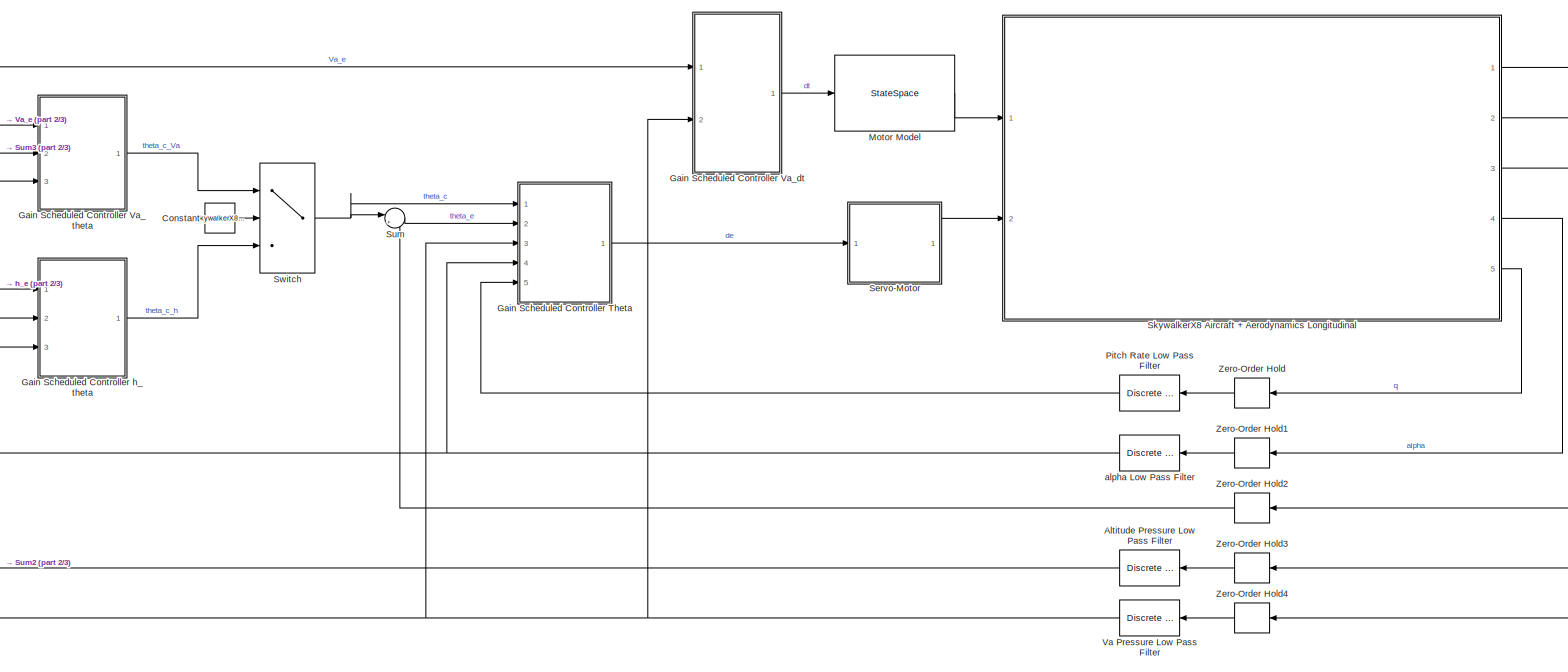
[diagram: root canvas - part 1/3, most of the canvas]
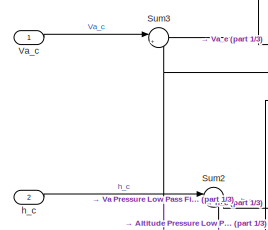
[diagram: root canvas - part 2/3, top left region]
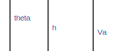
[diagram: root canvas - part 3/3, middle right region]
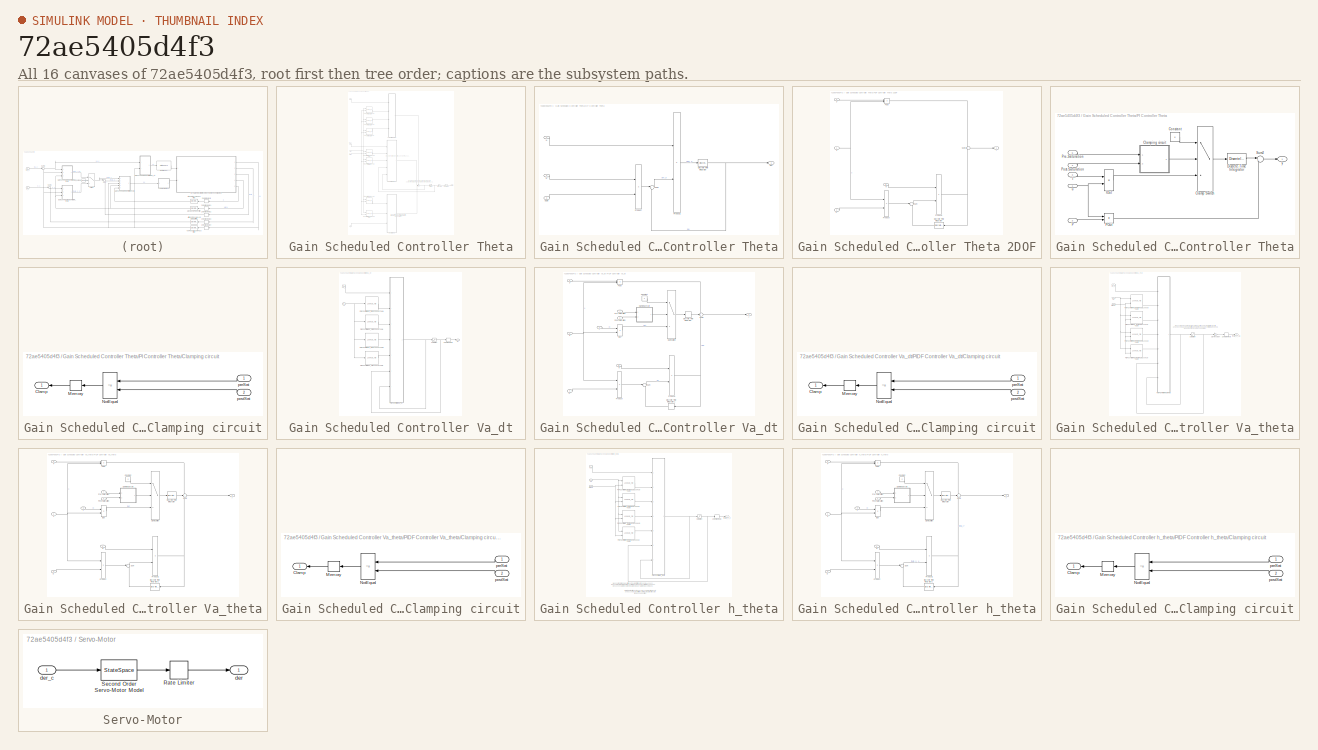
[diagram: thumbnail index - all 16 canvases of the model, root first then tree order]
MODEL slx_72ae5405d4f3
KIND model
CONFIG AbsTol = auto
CONFIG EnableMultiTasking = off
CONFIG FixedStep = 0.001
CONFIG MaxStep = auto
CONFIG MinStep = auto
CONFIG RelTol = 1e-3
CONFIG SampleTimeConstraint = Unconstrained
CONFIG Solver = FixedStepAuto
CONFIG SolverName = FixedStepAuto
CONFIG StartTime = 0.0
CONFIG StopTime = inf
BLOCK [Reference] Altitude Pressure Low Pass Filter  REF=simulink_extras/Additional
Discrete/Discrete
Transfer Fcn
(with initial outputs)
  Ports = [1, 1]
  SourceBlock = simulink_extras/Additional\nDiscrete/Discrete\nTransfer Fcn\n(with initial outputs)
  SourceProductBaseCode = SL
  SourceProductName = Simulink
  SourceType = Discrete Transfer Function with Initial Outputs
BLOCK [Constant] Constant
  Value = SkywalkerX8.Control.Longitudinal.AlgebraicDesign.ReducedOrderModel.Controller.ThetaCSelector
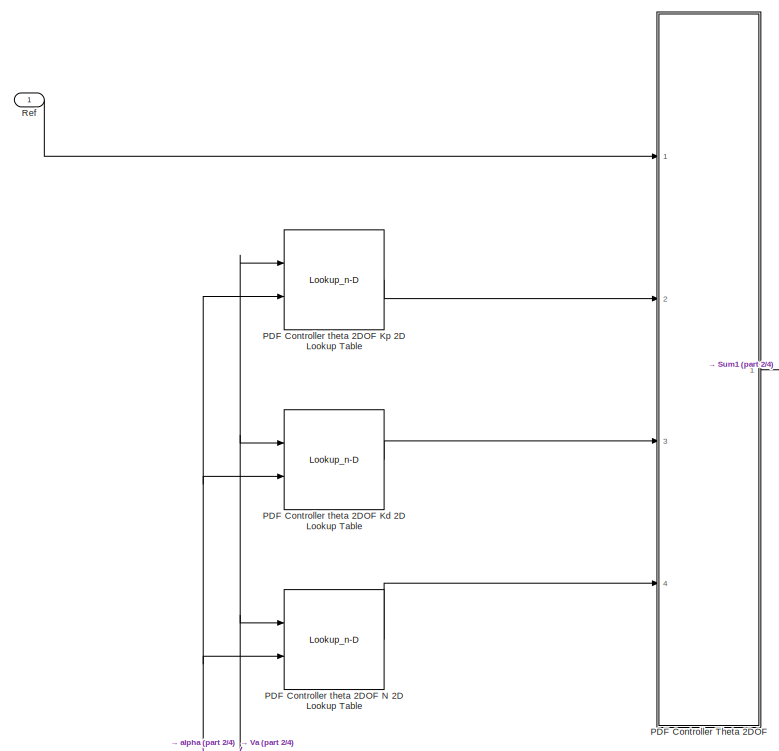
[diagram: Gain Scheduled Controller Theta - part 1/4, top left region]
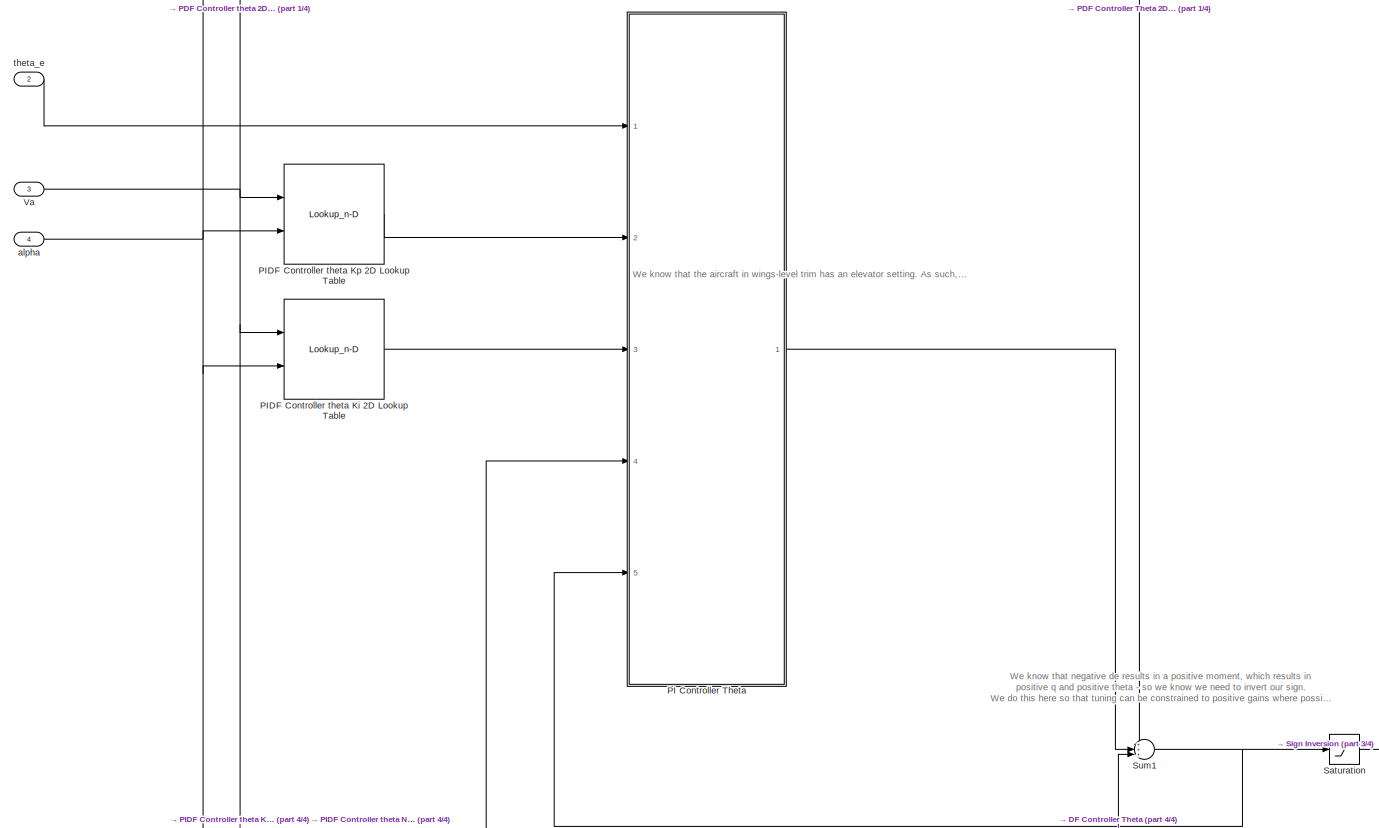
[diagram: Gain Scheduled Controller Theta - part 2/4, full width, middle band]
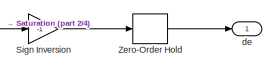
[diagram: Gain Scheduled Controller Theta - part 3/4, middle right region]
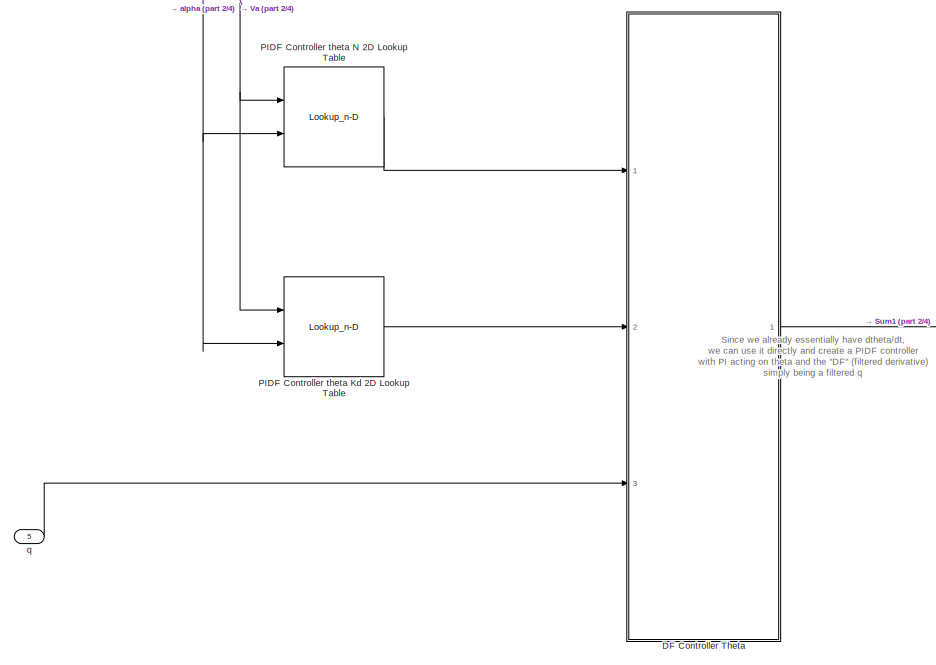
[diagram: Gain Scheduled Controller Theta - part 4/4, bottom left region]
BLOCK [SubSystem] Gain Scheduled Controller Theta
  Ports = [5, 1]
  RequestExecContextInheritance = off
BLOCK [SubSystem] Gain Scheduled Controller Theta/DF Controller Theta
  Ports = [3, 1]
  RequestExecContextInheritance = off
BLOCK [Inport] Gain Scheduled Controller Theta/DF Controller Theta/D
  IconDisplay = Port number
  Port = 2
BLOCK [DiscreteIntegrator] Gain Scheduled Controller Theta/DF Controller Theta/Discrete-Time Integrator
  ICPrevOutput = DiscIntNeverNeededParam
  ICPrevScaledInput = DiscIntNeverNeededParam
  InitialConditionSetting = Auto
  IntegratorMethod = Integration: Trapezoidal
  Ports = [1, 1]
  SampleTime = SkywalkerX8.Control.Longitudinal.thetaController.Digital.SampleTime
BLOCK [Inport] Gain Scheduled Controller Theta/DF Controller Theta/N
  IconDisplay = Port number
BLOCK [Product] Gain Scheduled Controller Theta/DF Controller Theta/Product
  InputSameDT = off
  OutDataTypeStr = Inherit: Inherit via internal rule
  Ports = [2, 1]
  RndMeth = Floor
  SaturateOnIntegerOverflow = off
BLOCK [Product] Gain Scheduled Controller Theta/DF Controller Theta/Product1
  InputSameDT = off
  OutDataTypeStr = Inherit: Inherit via internal rule
  Ports = [2, 1]
  RndMeth = Floor
  SaturateOnIntegerOverflow = off
BLOCK [Sum] Gain Scheduled Controller Theta/DF Controller Theta/Sum
  IconShape = round
  InputSameDT = off
  Inputs = |+-
  OutDataTypeStr = Inherit: Inherit via internal rule
  Ports = [2, 1]
  SaturateOnIntegerOverflow = off
BLOCK [Outport] Gain Scheduled Controller Theta/DF Controller Theta/de*
  IconDisplay = Port number
BLOCK [Inport] Gain Scheduled Controller Theta/DF Controller Theta/du//dt
  IconDisplay = Port number
  Port = 3
BLOCK [SubSystem] Gain Scheduled Controller Theta/PDF Controller Theta 2DOF
  Ports = [4, 1]
  RequestExecContextInheritance = off
BLOCK [Inport] Gain Scheduled Controller Theta/PDF Controller Theta 2DOF/D
  IconDisplay = Port number
  Port = 3
BLOCK [DiscreteIntegrator] Gain Scheduled Controller Theta/PDF Controller Theta 2DOF/Discrete-Time Integrator
  ICPrevOutput = DiscIntNeverNeededParam
  ICPrevScaledInput = DiscIntNeverNeededParam
  InitialConditionSetting = Auto
  Ports = [1, 1]
  SampleTime = SkywalkerX8.Control.Longitudinal.thetaController.Digital.SampleTime
BLOCK [Inport] Gain Scheduled Controller Theta/PDF Controller Theta 2DOF/N
  IconDisplay = Port number
  Port = 4
BLOCK [Inport] Gain Scheduled Controller Theta/PDF Controller Theta 2DOF/P
  IconDisplay = Port number
  Port = 2
BLOCK [Product] Gain Scheduled Controller Theta/PDF Controller Theta 2DOF/POut
  InputSameDT = off
  OutDataTypeStr = Inherit: Inherit via internal rule
  Ports = [2, 1]
  RndMeth = Floor
  SaturateOnIntegerOverflow = off
BLOCK [Product] Gain Scheduled Controller Theta/PDF Controller Theta 2DOF/Product
  InputSameDT = off
  OutDataTypeStr = Inherit: Inherit via internal rule
  Ports = [2, 1]
  RndMeth = Floor
  SaturateOnIntegerOverflow = off
BLOCK [Product] Gain Scheduled Controller Theta/PDF Controller Theta 2DOF/Product1
  InputSameDT = off
  OutDataTypeStr = Inherit: Inherit via internal rule
  Ports = [2, 1]
  RndMeth = Floor
  SaturateOnIntegerOverflow = off
BLOCK [Sum] Gain Scheduled Controller Theta/PDF Controller Theta 2DOF/Sum
  IconShape = round
  InputSameDT = off
  Inputs = |+-
  OutDataTypeStr = Inherit: Inherit via internal rule
  Ports = [2, 1]
  SaturateOnIntegerOverflow = off
BLOCK [Sum] Gain Scheduled Controller Theta/PDF Controller Theta 2DOF/Sum2
  IconShape = round
  InputSameDT = off
  OutDataTypeStr = Inherit: Inherit via internal rule
  Ports = [2, 1]
  SaturateOnIntegerOverflow = off
BLOCK [Inport] Gain Scheduled Controller Theta/PDF Controller Theta 2DOF/u
  IconDisplay = Port number
BLOCK [Outport] Gain Scheduled Controller Theta/PDF Controller Theta 2DOF/y
  IconDisplay = Port number
  InitialOutput = 0
BLOCK [Lookup_n-D] Gain Scheduled Controller Theta/PDF Controller theta 2DOF Kd 2D Lookup Table
  BreakpointsForDimension1 = SkywalkerX8.Control.Longitudinal.SchedulingVariables.VaArray
  BreakpointsForDimension2 = SkywalkerX8.Control.Longitudinal.SchedulingVariables.alphaArray
  InternalRulePriority = Speed
  Ports = [2, 1]
  RndMeth = Simplest
  Table = SkywalkerX8.Control.Longitudinal.thetaController.Digital.KdTheta2DOF
BLOCK [Lookup_n-D] Gain Scheduled Controller Theta/PDF Controller theta 2DOF Kp 2D Lookup Table
  BreakpointsForDimension1 = SkywalkerX8.Control.Longitudinal.SchedulingVariables.VaArray
  BreakpointsForDimension2 = SkywalkerX8.Control.Longitudinal.SchedulingVariables.alphaArray
  InternalRulePriority = Speed
  Ports = [2, 1]
  RndMeth = Simplest
  Table = SkywalkerX8.Control.Longitudinal.thetaController.Digital.KpTheta2DOF
BLOCK [Lookup_n-D] Gain Scheduled Controller Theta/PDF Controller theta 2DOF N 2D Lookup Table
  BreakpointsForDimension1 = SkywalkerX8.Control.Longitudinal.SchedulingVariables.VaArray
  BreakpointsForDimension2 = SkywalkerX8.Control.Longitudinal.SchedulingVariables.alphaArray
  InternalRulePriority = Speed
  Ports = [2, 1]
  RndMeth = Simplest
  Table = SkywalkerX8.Control.Longitudinal.thetaController.Digital.NTheta2DOF
BLOCK [SubSystem] Gain Scheduled Controller Theta/PI Controller Theta
  Ports = [5, 1]
  RequestExecContextInheritance = off
BLOCK [Switch] Gain Scheduled Controller Theta/PI Controller Theta/Clamp Switch
  Criteria = u2 ~= 0
  InputSameDT = off
  SaturateOnIntegerOverflow = off
BLOCK [SubSystem] Gain Scheduled Controller Theta/PI Controller Theta/Clamping circuit
  Ports = [2, 1]
  RequestExecContextInheritance = off
BLOCK [Outport] Gain Scheduled Controller Theta/PI Controller Theta/Clamping circuit/Clamp
  DisableCoverage = on
  IconDisplay = Port number
BLOCK [Memory] Gain Scheduled Controller Theta/PI Controller Theta/Clamping circuit/Memory
  DisableCoverage = on
BLOCK [RelationalOperator] Gain Scheduled Controller Theta/PI Controller Theta/Clamping circuit/NotEqual
  DisableCoverage = on
  Operator = ~=
  Ports = [2, 1]
BLOCK [Inport] Gain Scheduled Controller Theta/PI Controller Theta/Clamping circuit/postSat
  DisableCoverage = on
  IconDisplay = Port number
  Port = 2
BLOCK [Inport] Gain Scheduled Controller Theta/PI Controller Theta/Clamping circuit/preSat
  DisableCoverage = on
  IconDisplay = Port number
BLOCK [Constant] Gain Scheduled Controller Theta/PI Controller Theta/Constant
  Value = 0
BLOCK [DiscreteIntegrator] Gain Scheduled Controller Theta/PI Controller Theta/Discrete-Time Integrator
  ICPrevOutput = DiscIntNeverNeededParam
  ICPrevScaledInput = DiscIntNeverNeededParam
  InitialCondition = SkywalkerX8.InitialConditions.ThetaController.Integrator
  InitialConditionSetting = Auto
  IntegratorMethod = Integration: Trapezoidal
  Ports = [1, 1]
  SampleTime = SkywalkerX8.Control.Longitudinal.thetaController.Digital.SampleTime
BLOCK [Inport] Gain Scheduled Controller Theta/PI Controller Theta/I
  IconDisplay = Port number
  Port = 3
BLOCK [Product] Gain Scheduled Controller Theta/PI Controller Theta/IOut
  DisableCoverage = on
  InputSameDT = off
  OutDataTypeStr = Inherit: Inherit via internal rule
  Ports = [2, 1]
  RndMeth = Floor
  SaturateOnIntegerOverflow = off
BLOCK [Inport] Gain Scheduled Controller Theta/PI Controller Theta/P
  IconDisplay = Port number
  Port = 2
BLOCK [Product] Gain Scheduled Controller Theta/PI Controller Theta/POut
  InputSameDT = off
  OutDataTypeStr = Inherit: Inherit via internal rule
  Ports = [2, 1]
  RndMeth = Floor
  SaturateOnIntegerOverflow = off
BLOCK [Inport] Gain Scheduled Controller Theta/PI Controller Theta/Post-Saturation
  IconDisplay = Port number
  Port = 4
BLOCK [Inport] Gain Scheduled Controller Theta/PI Controller Theta/Pre-Saturation
  IconDisplay = Port number
  Port = 5
BLOCK [Sum] Gain Scheduled Controller Theta/PI Controller Theta/Sum2
  IconShape = round
  InputSameDT = off
  Inputs = |++
  OutDataTypeStr = Inherit: Inherit via internal rule
  Ports = [2, 1]
  SaturateOnIntegerOverflow = off
BLOCK [Inport] Gain Scheduled Controller Theta/PI Controller Theta/u
  IconDisplay = Port number
BLOCK [Outport] Gain Scheduled Controller Theta/PI Controller Theta/y
  IconDisplay = Port number
  InitialOutput = 0
BLOCK [Lookup_n-D] Gain Scheduled Controller Theta/PIDF Controller theta Kd 2D Lookup Table
  BreakpointsForDimension1 = SkywalkerX8.Control.Longitudinal.SchedulingVariables.VaArray
  BreakpointsForDimension2 = SkywalkerX8.Control.Longitudinal.SchedulingVariables.alphaArray
  InternalRulePriority = Speed
  Ports = [2, 1]
  RndMeth = Simplest
  Table = SkywalkerX8.Control.Longitudinal.thetaController.Digital.KdTheta
BLOCK [Lookup_n-D] Gain Scheduled Controller Theta/PIDF Controller theta Ki 2D Lookup Table
  BreakpointsForDimension1 = SkywalkerX8.Control.Longitudinal.SchedulingVariables.VaArray
  BreakpointsForDimension2 = SkywalkerX8.Control.Longitudinal.SchedulingVariables.alphaArray
  InternalRulePriority = Speed
  Ports = [2, 1]
  RndMeth = Simplest
  Table = SkywalkerX8.Control.Longitudinal.thetaController.Digital.KiTheta
BLOCK [Lookup_n-D] Gain Scheduled Controller Theta/PIDF Controller theta Kp 2D Lookup Table
  BreakpointsForDimension1 = SkywalkerX8.Control.Longitudinal.SchedulingVariables.VaArray
  BreakpointsForDimension2 = SkywalkerX8.Control.Longitudinal.SchedulingVariables.alphaArray
  InternalRulePriority = Speed
  Ports = [2, 1]
  RndMeth = Simplest
  Table = SkywalkerX8.Control.Longitudinal.thetaController.Digital.KpTheta
BLOCK [Lookup_n-D] Gain Scheduled Controller Theta/PIDF Controller theta N 2D Lookup Table
  BreakpointsForDimension1 = SkywalkerX8.Control.Longitudinal.SchedulingVariables.VaArray
  BreakpointsForDimension2 = SkywalkerX8.Control.Longitudinal.SchedulingVariables.alphaArray
  InternalRulePriority = Speed
  Ports = [2, 1]
  RndMeth = Simplest
  Table = SkywalkerX8.Control.Longitudinal.thetaController.Digital.NTheta
BLOCK [Inport] Gain Scheduled Controller Theta/Ref
  IconDisplay = Port number
BLOCK [Saturate] Gain Scheduled Controller Theta/Saturation
  InputPortMap = u0
  LowerLimit = SkywalkerX8.Control.Longitudinal.thetaController.Digital.lowerSaturationNegativeDe
  Ports = [1, 1]
  UpperLimit = SkywalkerX8.Control.Longitudinal.thetaController.Digital.upperSaturationNegativeDe
BLOCK [Gain] Gain Scheduled Controller Theta/Sign Inversion
  Gain = -1
  OutDataTypeStr = Inherit: Inherit via internal rule
  ParamDataTypeStr = Inherit: Inherit via internal rule
  SaturateOnIntegerOverflow = off
BLOCK [Sum] Gain Scheduled Controller Theta/Sum1
  IconShape = round
  InputSameDT = off
  Inputs = +++|
  OutDataTypeStr = Inherit: Inherit via internal rule
  Ports = [3, 1]
  SaturateOnIntegerOverflow = off
BLOCK [Inport] Gain Scheduled Controller Theta/Va
  IconDisplay = Port number
  Port = 3
BLOCK [ZeroOrderHold] Gain Scheduled Controller Theta/Zero-Order Hold
  SampleTime = SkywalkerX8.Control.Longitudinal.thetaController.Digital.SampleTime
BLOCK [Inport] Gain Scheduled Controller Theta/alpha
  IconDisplay = Port number
  Port = 4
BLOCK [Outport] Gain Scheduled Controller Theta/de
  IconDisplay = Port number
BLOCK [Inport] Gain Scheduled Controller Theta/q
  IconDisplay = Port number
  Port = 5
BLOCK [Inport] Gain Scheduled Controller Theta/theta_e
  IconDisplay = Port number
  Port = 2
BLOCK [SubSystem] Gain Scheduled Controller Va_dt
  Ports = [2, 1]
  RequestExecContextInheritance = off
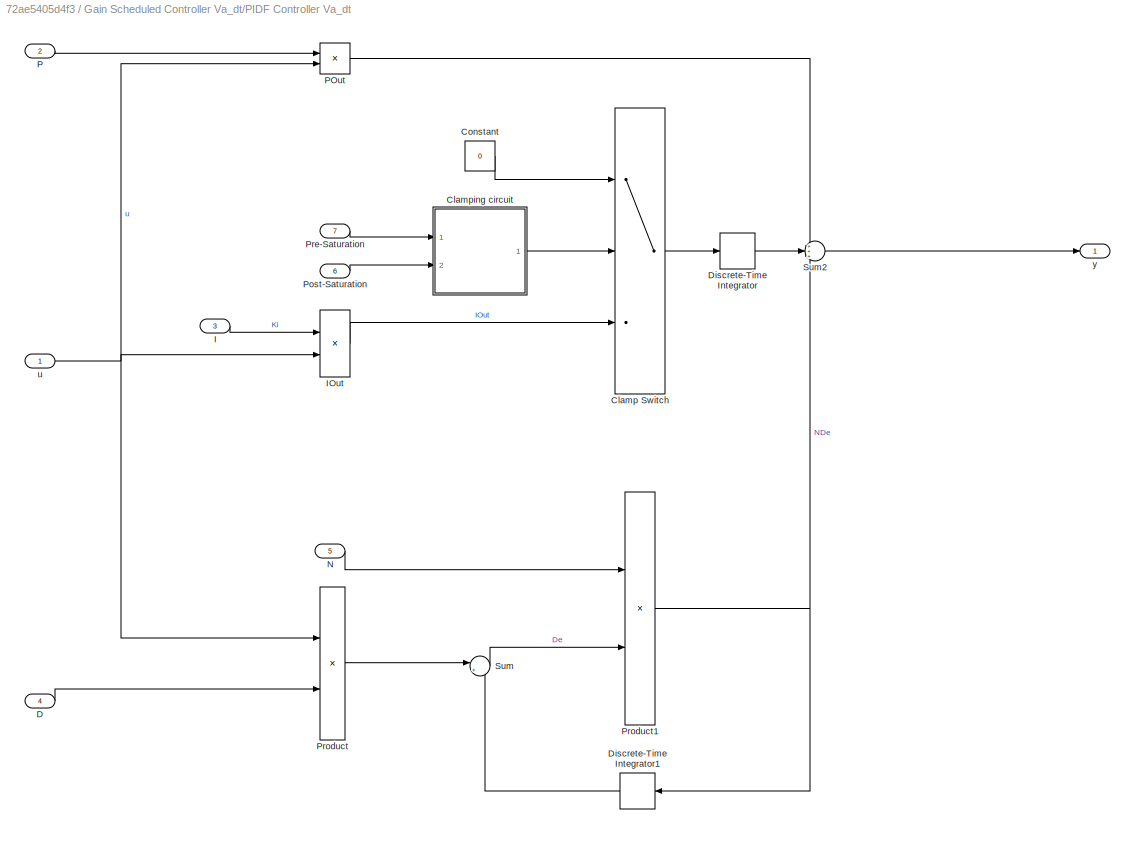
BLOCK [SubSystem] Gain Scheduled Controller Va_dt/PIDF Controller Va_dt
  Ports = [7, 1]
  RequestExecContextInheritance = off
BLOCK [Lookup_n-D] Gain Scheduled Controller Va_dt/PIDF Controller Va_dt Kd Lookup Table
  BreakpointsForDimension1 = SkywalkerX8.Control.Longitudinal.SchedulingVariables.VaArray
  BreakpointsForDimension2 = [1 2 3 4 5]
  InternalRulePriority = Speed
  NumberOfTableDimensions = 1
  Ports = [1, 1]
  RndMeth = Simplest
  Table = SkywalkerX8.Control.Longitudinal.VaDtController.Digital.KdVaDt
BLOCK [Lookup_n-D] Gain Scheduled Controller Va_dt/PIDF Controller Va_dt Ki Lookup Table
  BreakpointsForDimension1 = SkywalkerX8.Control.Longitudinal.SchedulingVariables.VaArray
  BreakpointsForDimension2 = [1 2 3 4 5]
  InternalRulePriority = Speed
  NumberOfTableDimensions = 1
  Ports = [1, 1]
  RndMeth = Simplest
  Table = SkywalkerX8.Control.Longitudinal.VaDtController.Digital.KiVaDt
BLOCK [Lookup_n-D] Gain Scheduled Controller Va_dt/PIDF Controller Va_dt Kp Lookup Table
  BreakpointsForDimension1 = SkywalkerX8.Control.Longitudinal.SchedulingVariables.VaArray
  BreakpointsForDimension2 = [1 2 3 4 5]
  InternalRulePriority = Speed
  NumberOfTableDimensions = 1
  Ports = [1, 1]
  RndMeth = Simplest
  Table = SkywalkerX8.Control.Longitudinal.VaDtController.Digital.KpVaDt
BLOCK [Lookup_n-D] Gain Scheduled Controller Va_dt/PIDF Controller Va_dt N Lookup Table
  BreakpointsForDimension1 = SkywalkerX8.Control.Longitudinal.SchedulingVariables.VaArray
  BreakpointsForDimension2 = [1 2 3 4 5]
  InternalRulePriority = Speed
  NumberOfTableDimensions = 1
  Ports = [1, 1]
  RndMeth = Simplest
  Table = SkywalkerX8.Control.Longitudinal.VaDtController.Digital.NVaDt
BLOCK [Switch] Gain Scheduled Controller Va_dt/PIDF Controller Va_dt/Clamp Switch
  Criteria = u2 ~= 0
  InputSameDT = off
  SaturateOnIntegerOverflow = off
BLOCK [SubSystem] Gain Scheduled Controller Va_dt/PIDF Controller Va_dt/Clamping circuit
  Ports = [2, 1]
  RequestExecContextInheritance = off
BLOCK [Outport] Gain Scheduled Controller Va_dt/PIDF Controller Va_dt/Clamping circuit/Clamp
  DisableCoverage = on
  IconDisplay = Port number
BLOCK [Memory] Gain Scheduled Controller Va_dt/PIDF Controller Va_dt/Clamping circuit/Memory
  DisableCoverage = on
BLOCK [RelationalOperator] Gain Scheduled Controller Va_dt/PIDF Controller Va_dt/Clamping circuit/NotEqual
  DisableCoverage = on
  Operator = ~=
  Ports = [2, 1]
BLOCK [Inport] Gain Scheduled Controller Va_dt/PIDF Controller Va_dt/Clamping circuit/postSat
  DisableCoverage = on
  IconDisplay = Port number
  Port = 2
BLOCK [Inport] Gain Scheduled Controller Va_dt/PIDF Controller Va_dt/Clamping circuit/preSat
  DisableCoverage = on
  IconDisplay = Port number
BLOCK [Constant] Gain Scheduled Controller Va_dt/PIDF Controller Va_dt/Constant
  Value = 0
BLOCK [Inport] Gain Scheduled Controller Va_dt/PIDF Controller Va_dt/D
  IconDisplay = Port number
  Port = 4
BLOCK [DiscreteIntegrator] Gain Scheduled Controller Va_dt/PIDF Controller Va_dt/Discrete-Time Integrator
  ICPrevOutput = DiscIntNeverNeededParam
  ICPrevScaledInput = DiscIntNeverNeededParam
  InitialCondition = SkywalkerX8.InitialConditions.dt
  InitialConditionSetting = Auto
  IntegratorMethod = Integration: Trapezoidal
  Ports = [1, 1]
  SampleTime = SkywalkerX8.Control.Longitudinal.VaDtController.Digital.SampleTime
BLOCK [DiscreteIntegrator] Gain Scheduled Controller Va_dt/PIDF Controller Va_dt/Discrete-Time Integrator1
  ICPrevOutput = DiscIntNeverNeededParam
  ICPrevScaledInput = DiscIntNeverNeededParam
  InitialConditionSetting = Auto
  Ports = [1, 1]
  SampleTime = SkywalkerX8.Control.Longitudinal.VaDtController.Digital.SampleTime
BLOCK [Inport] Gain Scheduled Controller Va_dt/PIDF Controller Va_dt/I
  IconDisplay = Port number
  Port = 3
BLOCK [Product] Gain Scheduled Controller Va_dt/PIDF Controller Va_dt/IOut
  DisableCoverage = on
  InputSameDT = off
  OutDataTypeStr = Inherit: Inherit via internal rule
  Ports = [2, 1]
  RndMeth = Floor
  SaturateOnIntegerOverflow = off
BLOCK [Inport] Gain Scheduled Controller Va_dt/PIDF Controller Va_dt/N
  IconDisplay = Port number
  Port = 5
BLOCK [Inport] Gain Scheduled Controller Va_dt/PIDF Controller Va_dt/P
  IconDisplay = Port number
  Port = 2
BLOCK [Product] Gain Scheduled Controller Va_dt/PIDF Controller Va_dt/POut
  InputSameDT = off
  OutDataTypeStr = Inherit: Inherit via internal rule
  Ports = [2, 1]
  RndMeth = Floor
  SaturateOnIntegerOverflow = off
BLOCK [Inport] Gain Scheduled Controller Va_dt/PIDF Controller Va_dt/Post-Saturation
  IconDisplay = Port number
  Port = 6
BLOCK [Inport] Gain Scheduled Controller Va_dt/PIDF Controller Va_dt/Pre-Saturation
  IconDisplay = Port number
  Port = 7
BLOCK [Product] Gain Scheduled Controller Va_dt/PIDF Controller Va_dt/Product
  InputSameDT = off
  OutDataTypeStr = Inherit: Inherit via internal rule
  Ports = [2, 1]
  RndMeth = Floor
  SaturateOnIntegerOverflow = off
BLOCK [Product] Gain Scheduled Controller Va_dt/PIDF Controller Va_dt/Product1
  InputSameDT = off
  OutDataTypeStr = Inherit: Inherit via internal rule
  Ports = [2, 1]
  RndMeth = Floor
  SaturateOnIntegerOverflow = off
BLOCK [Sum] Gain Scheduled Controller Va_dt/PIDF Controller Va_dt/Sum
  IconShape = round
  InputSameDT = off
  Inputs = |+-
  OutDataTypeStr = Inherit: Inherit via internal rule
  Ports = [2, 1]
  SaturateOnIntegerOverflow = off
BLOCK [Sum] Gain Scheduled Controller Va_dt/PIDF Controller Va_dt/Sum2
  IconShape = round
  InputSameDT = off
  Inputs = +++
  OutDataTypeStr = Inherit: Inherit via internal rule
  Ports = [3, 1]
  SaturateOnIntegerOverflow = off
BLOCK [Inport] Gain Scheduled Controller Va_dt/PIDF Controller Va_dt/u
  IconDisplay = Port number
BLOCK [Outport] Gain Scheduled Controller Va_dt/PIDF Controller Va_dt/y
  IconDisplay = Port number
  InitialOutput = 0
BLOCK [Saturate] Gain Scheduled Controller Va_dt/Saturation
  InputPortMap = u0
  LowerLimit = SkywalkerX8.Control.Longitudinal.VaDtController.lowerSaturationDt
  Ports = [1, 1]
  UpperLimit = SkywalkerX8.Control.Longitudinal.VaDtController.upperSaturationDt
BLOCK [Inport] Gain Scheduled Controller Va_dt/Va
  IconDisplay = Port number
  Port = 2
BLOCK [Inport] Gain Scheduled Controller Va_dt/Va_e
  IconDisplay = Port number
BLOCK [ZeroOrderHold] Gain Scheduled Controller Va_dt/Zero-Order Hold
  SampleTime = SkywalkerX8.Control.Longitudinal.VaDtController.Digital.SampleTime
BLOCK [Outport] Gain Scheduled Controller Va_dt/dt
  IconDisplay = Port number
BLOCK [SubSystem] Gain Scheduled Controller Va_theta
  Ports = [3, 1]
  RequestExecContextInheritance = off
BLOCK [SubSystem] Gain Scheduled Controller Va_theta/PIDF Controller Va_theta
  Ports = [7, 1]
  RequestExecContextInheritance = off
BLOCK [Lookup_n-D] Gain Scheduled Controller Va_theta/PIDF Controller Va_theta Kd 2D Lookup Table
  BreakpointsForDimension1 = SkywalkerX8.Control.Longitudinal.SchedulingVariables.VaArray
  BreakpointsForDimension2 = SkywalkerX8.Control.Longitudinal.SchedulingVariables.alphaArray
  InternalRulePriority = Speed
  Ports = [2, 1]
  RndMeth = Simplest
  Table = SkywalkerX8.Control.Longitudinal.VaThetaController.Digital.KdVaTheta
BLOCK [Lookup_n-D] Gain Scheduled Controller Va_theta/PIDF Controller Va_theta Ki 2D Lookup Table
  BreakpointsForDimension1 = SkywalkerX8.Control.Longitudinal.SchedulingVariables.VaArray
  BreakpointsForDimension2 = SkywalkerX8.Control.Longitudinal.SchedulingVariables.alphaArray
  InternalRulePriority = Speed
  Ports = [2, 1]
  RndMeth = Simplest
  Table = SkywalkerX8.Control.Longitudinal.VaThetaController.Digital.KiVaTheta
BLOCK [Lookup_n-D] Gain Scheduled Controller Va_theta/PIDF Controller Va_theta Kp 2D Lookup Table
  BreakpointsForDimension1 = SkywalkerX8.Control.Longitudinal.SchedulingVariables.VaArray
  BreakpointsForDimension2 = SkywalkerX8.Control.Longitudinal.SchedulingVariables.alphaArray
  InternalRulePriority = Speed
  Ports = [2, 1]
  RndMeth = Simplest
  Table = SkywalkerX8.Control.Longitudinal.VaThetaController.Digital.KpVaTheta
BLOCK [Lookup_n-D] Gain Scheduled Controller Va_theta/PIDF Controller Va_theta N 2D Lookup Table
  BreakpointsForDimension1 = SkywalkerX8.Control.Longitudinal.SchedulingVariables.VaArray
  BreakpointsForDimension2 = SkywalkerX8.Control.Longitudinal.SchedulingVariables.alphaArray
  InternalRulePriority = Speed
  Ports = [2, 1]
  RndMeth = Simplest
  Table = SkywalkerX8.Control.Longitudinal.VaThetaController.Digital.NVaTheta
BLOCK [Switch] Gain Scheduled Controller Va_theta/PIDF Controller Va_theta/Clamp Switch
  Criteria = u2 ~= 0
  InputSameDT = off
  SaturateOnIntegerOverflow = off
BLOCK [SubSystem] Gain Scheduled Controller Va_theta/PIDF Controller Va_theta/Clamping circuit
  Ports = [2, 1]
  RequestExecContextInheritance = off
BLOCK [Outport] Gain Scheduled Controller Va_theta/PIDF Controller Va_theta/Clamping circuit/Clamp
  DisableCoverage = on
  IconDisplay = Port number
BLOCK [Memory] Gain Scheduled Controller Va_theta/PIDF Controller Va_theta/Clamping circuit/Memory
  DisableCoverage = on
BLOCK [RelationalOperator] Gain Scheduled Controller Va_theta/PIDF Controller Va_theta/Clamping circuit/NotEqual
  DisableCoverage = on
  Operator = ~=
  Ports = [2, 1]
BLOCK [Inport] Gain Scheduled Controller Va_theta/PIDF Controller Va_theta/Clamping circuit/postSat
  DisableCoverage = on
  IconDisplay = Port number
  Port = 2
BLOCK [Inport] Gain Scheduled Controller Va_theta/PIDF Controller Va_theta/Clamping circuit/preSat
  DisableCoverage = on
  IconDisplay = Port number
BLOCK [Constant] Gain Scheduled Controller Va_theta/PIDF Controller Va_theta/Constant
  Value = 0
BLOCK [Inport] Gain Scheduled Controller Va_theta/PIDF Controller Va_theta/D
  IconDisplay = Port number
  Port = 4
BLOCK [DiscreteIntegrator] Gain Scheduled Controller Va_theta/PIDF Controller Va_theta/Discrete-Time Integrator
  ICPrevOutput = DiscIntNeverNeededParam
  ICPrevScaledInput = DiscIntNeverNeededParam
  InitialCondition = -SkywalkerX8.InitialConditions.PhiThetaPsi(2)
  InitialConditionSetting = Auto
  IntegratorMethod = Integration: Trapezoidal
  Ports = [1, 1]
  SampleTime = SkywalkerX8.Control.Longitudinal.VaThetaController.Digital.SampleTime
BLOCK [DiscreteIntegrator] Gain Scheduled Controller Va_theta/PIDF Controller Va_theta/Discrete-Time Integrator1
  ICPrevOutput = DiscIntNeverNeededParam
  ICPrevScaledInput = DiscIntNeverNeededParam
  InitialConditionSetting = Auto
  Ports = [1, 1]
  SampleTime = SkywalkerX8.Control.Longitudinal.VaThetaController.Digital.SampleTime
BLOCK [Inport] Gain Scheduled Controller Va_theta/PIDF Controller Va_theta/I
  IconDisplay = Port number
  Port = 3
BLOCK [Product] Gain Scheduled Controller Va_theta/PIDF Controller Va_theta/IOut
  DisableCoverage = on
  InputSameDT = off
  OutDataTypeStr = Inherit: Inherit via internal rule
  Ports = [2, 1]
  RndMeth = Floor
  SaturateOnIntegerOverflow = off
BLOCK [Inport] Gain Scheduled Controller Va_theta/PIDF Controller Va_theta/N
  IconDisplay = Port number
  Port = 5
BLOCK [Inport] Gain Scheduled Controller Va_theta/PIDF Controller Va_theta/P
  IconDisplay = Port number
  Port = 2
BLOCK [Product] Gain Scheduled Controller Va_theta/PIDF Controller Va_theta/POut
  InputSameDT = off
  OutDataTypeStr = Inherit: Inherit via internal rule
  Ports = [2, 1]
  RndMeth = Floor
  SaturateOnIntegerOverflow = off
BLOCK [Inport] Gain Scheduled Controller Va_theta/PIDF Controller Va_theta/Post-Saturation
  IconDisplay = Port number
  Port = 6
BLOCK [Inport] Gain Scheduled Controller Va_theta/PIDF Controller Va_theta/Pre-Saturation
  IconDisplay = Port number
  Port = 7
BLOCK [Product] Gain Scheduled Controller Va_theta/PIDF Controller Va_theta/Product
  InputSameDT = off
  OutDataTypeStr = Inherit: Inherit via internal rule
  Ports = [2, 1]
  RndMeth = Floor
  SaturateOnIntegerOverflow = off
BLOCK [Product] Gain Scheduled Controller Va_theta/PIDF Controller Va_theta/Product1
  InputSameDT = off
  OutDataTypeStr = Inherit: Inherit via internal rule
  Ports = [2, 1]
  RndMeth = Floor
  SaturateOnIntegerOverflow = off
BLOCK [Sum] Gain Scheduled Controller Va_theta/PIDF Controller Va_theta/Sum
  IconShape = round
  InputSameDT = off
  Inputs = |+-
  OutDataTypeStr = Inherit: Inherit via internal rule
  Ports = [2, 1]
  SaturateOnIntegerOverflow = off
BLOCK [Sum] Gain Scheduled Controller Va_theta/PIDF Controller Va_theta/Sum2
  IconShape = round
  InputSameDT = off
  Inputs = +++
  OutDataTypeStr = Inherit: Inherit via internal rule
  Ports = [3, 1]
  SaturateOnIntegerOverflow = off
BLOCK [Inport] Gain Scheduled Controller Va_theta/PIDF Controller Va_theta/u
  IconDisplay = Port number
BLOCK [Outport] Gain Scheduled Controller Va_theta/PIDF Controller Va_theta/y
  IconDisplay = Port number
  InitialOutput = 0
BLOCK [Saturate] Gain Scheduled Controller Va_theta/Saturation
  InputPortMap = u0
  LowerLimit = SkywalkerX8.Control.Longitudinal.VaThetaController.Digital.lowerSaturationThetaC
  Ports = [1, 1]
  UpperLimit = SkywalkerX8.Control.Longitudinal.VaThetaController.Digital.upperSaturationThetaC
BLOCK [Gain] Gain Scheduled Controller Va_theta/Sign Inversion
  Gain = -1
  OutDataTypeStr = Inherit: Inherit via internal rule
  ParamDataTypeStr = Inherit: Inherit via internal rule
  SaturateOnIntegerOverflow = off
BLOCK [Inport] Gain Scheduled Controller Va_theta/Va
  IconDisplay = Port number
  Port = 2
BLOCK [Inport] Gain Scheduled Controller Va_theta/Va_e
  IconDisplay = Port number
BLOCK [ZeroOrderHold] Gain Scheduled Controller Va_theta/Zero-Order Hold
  SampleTime = SkywalkerX8.Control.Longitudinal.altController.Digital.SampleTime
BLOCK [Inport] Gain Scheduled Controller Va_theta/alpha
  IconDisplay = Port number
  Port = 3
BLOCK [Outport] Gain Scheduled Controller Va_theta/theta_c_Va
  IconDisplay = Port number
BLOCK [SubSystem] Gain Scheduled Controller h_theta
  Ports = [3, 1]
  RequestExecContextInheritance = off
BLOCK [SubSystem] Gain Scheduled Controller h_theta/PIDF Controller h_theta
  Ports = [7, 1]
  RequestExecContextInheritance = off
BLOCK [Lookup_n-D] Gain Scheduled Controller h_theta/PIDF Controller h_theta Kd 2D Lookup Table
  BreakpointsForDimension1 = SkywalkerX8.Control.Longitudinal.SchedulingVariables.VaArray
  BreakpointsForDimension2 = SkywalkerX8.Control.Longitudinal.SchedulingVariables.alphaArray
  InternalRulePriority = Speed
  Ports = [2, 1]
  RndMeth = Simplest
  Table = SkywalkerX8.Control.Longitudinal.altController.Digital.KdAlt
BLOCK [Lookup_n-D] Gain Scheduled Controller h_theta/PIDF Controller h_theta Ki 2D Lookup Table
  BreakpointsForDimension1 = SkywalkerX8.Control.Longitudinal.SchedulingVariables.VaArray
  BreakpointsForDimension2 = SkywalkerX8.Control.Longitudinal.SchedulingVariables.alphaArray
  InternalRulePriority = Speed
  Ports = [2, 1]
  RndMeth = Simplest
  Table = SkywalkerX8.Control.Longitudinal.altController.Digital.KiAlt
BLOCK [Lookup_n-D] Gain Scheduled Controller h_theta/PIDF Controller h_theta Kp 2D Lookup Table
  BreakpointsForDimension1 = SkywalkerX8.Control.Longitudinal.SchedulingVariables.VaArray
  BreakpointsForDimension2 = SkywalkerX8.Control.Longitudinal.SchedulingVariables.alphaArray
  InternalRulePriority = Speed
  Ports = [2, 1]
  RndMeth = Simplest
  Table = SkywalkerX8.Control.Longitudinal.altController.Digital.KpAlt
BLOCK [Lookup_n-D] Gain Scheduled Controller h_theta/PIDF Controller h_theta N 2D Lookup Table
  BreakpointsForDimension1 = SkywalkerX8.Control.Longitudinal.SchedulingVariables.VaArray
  BreakpointsForDimension2 = SkywalkerX8.Control.Longitudinal.SchedulingVariables.alphaArray
  InternalRulePriority = Speed
  Ports = [2, 1]
  RndMeth = Simplest
  Table = SkywalkerX8.Control.Longitudinal.altController.Digital.NAlt
BLOCK [Switch] Gain Scheduled Controller h_theta/PIDF Controller h_theta/Clamp Switch
  Criteria = u2 ~= 0
  InputSameDT = off
  SaturateOnIntegerOverflow = off
BLOCK [SubSystem] Gain Scheduled Controller h_theta/PIDF Controller h_theta/Clamping circuit
  Ports = [2, 1]
  RequestExecContextInheritance = off
BLOCK [Outport] Gain Scheduled Controller h_theta/PIDF Controller h_theta/Clamping circuit/Clamp
  DisableCoverage = on
  IconDisplay = Port number
BLOCK [Memory] Gain Scheduled Controller h_theta/PIDF Controller h_theta/Clamping circuit/Memory
  DisableCoverage = on
BLOCK [RelationalOperator] Gain Scheduled Controller h_theta/PIDF Controller h_theta/Clamping circuit/NotEqual
  DisableCoverage = on
  Operator = ~=
  Ports = [2, 1]
BLOCK [Inport] Gain Scheduled Controller h_theta/PIDF Controller h_theta/Clamping circuit/postSat
  DisableCoverage = on
  IconDisplay = Port number
  Port = 2
BLOCK [Inport] Gain Scheduled Controller h_theta/PIDF Controller h_theta/Clamping circuit/preSat
  DisableCoverage = on
  IconDisplay = Port number
BLOCK [Constant] Gain Scheduled Controller h_theta/PIDF Controller h_theta/Constant
  Value = 0
BLOCK [Inport] Gain Scheduled Controller h_theta/PIDF Controller h_theta/D
  IconDisplay = Port number
  Port = 4
BLOCK [DiscreteIntegrator] Gain Scheduled Controller h_theta/PIDF Controller h_theta/Discrete-Time Integrator
  ICPrevOutput = DiscIntNeverNeededParam
  ICPrevScaledInput = DiscIntNeverNeededParam
  InitialCondition = SkywalkerX8.InitialConditions.PhiThetaPsi(2)
  InitialConditionSetting = Auto
  IntegratorMethod = Integration: Trapezoidal
  Ports = [1, 1]
  SampleTime = SkywalkerX8.Control.Longitudinal.altController.Digital.SampleTime
BLOCK [DiscreteIntegrator] Gain Scheduled Controller h_theta/PIDF Controller h_theta/Discrete-Time Integrator1
  ICPrevOutput = DiscIntNeverNeededParam
  ICPrevScaledInput = DiscIntNeverNeededParam
  InitialConditionSetting = Auto
  Ports = [1, 1]
  SampleTime = SkywalkerX8.Control.Longitudinal.altController.Digital.SampleTime
BLOCK [Inport] Gain Scheduled Controller h_theta/PIDF Controller h_theta/I
  IconDisplay = Port number
  Port = 3
BLOCK [Product] Gain Scheduled Controller h_theta/PIDF Controller h_theta/IOut
  DisableCoverage = on
  InputSameDT = off
  OutDataTypeStr = Inherit: Inherit via internal rule
  Ports = [2, 1]
  RndMeth = Floor
  SaturateOnIntegerOverflow = off
BLOCK [Inport] Gain Scheduled Controller h_theta/PIDF Controller h_theta/N
  IconDisplay = Port number
  Port = 5
BLOCK [Inport] Gain Scheduled Controller h_theta/PIDF Controller h_theta/P
  IconDisplay = Port number
  Port = 2
BLOCK [Product] Gain Scheduled Controller h_theta/PIDF Controller h_theta/POut
  InputSameDT = off
  OutDataTypeStr = Inherit: Inherit via internal rule
  Ports = [2, 1]
  RndMeth = Floor
  SaturateOnIntegerOverflow = off
BLOCK [Inport] Gain Scheduled Controller h_theta/PIDF Controller h_theta/Post-Saturation
  IconDisplay = Port number
  Port = 6
BLOCK [Inport] Gain Scheduled Controller h_theta/PIDF Controller h_theta/Pre-Saturation
  IconDisplay = Port number
  Port = 7
BLOCK [Product] Gain Scheduled Controller h_theta/PIDF Controller h_theta/Product
  InputSameDT = off
  OutDataTypeStr = Inherit: Inherit via internal rule
  Ports = [2, 1]
  RndMeth = Floor
  SaturateOnIntegerOverflow = off
BLOCK [Product] Gain Scheduled Controller h_theta/PIDF Controller h_theta/Product1
  InputSameDT = off
  OutDataTypeStr = Inherit: Inherit via internal rule
  Ports = [2, 1]
  RndMeth = Floor
  SaturateOnIntegerOverflow = off
BLOCK [Sum] Gain Scheduled Controller h_theta/PIDF Controller h_theta/Sum
  IconShape = round
  InputSameDT = off
  Inputs = |+-
  OutDataTypeStr = Inherit: Inherit via internal rule
  Ports = [2, 1]
  SaturateOnIntegerOverflow = off
BLOCK [Sum] Gain Scheduled Controller h_theta/PIDF Controller h_theta/Sum2
  IconShape = round
  InputSameDT = off
  Inputs = +++
  OutDataTypeStr = Inherit: Inherit via internal rule
  Ports = [3, 1]
  SaturateOnIntegerOverflow = off
BLOCK [Inport] Gain Scheduled Controller h_theta/PIDF Controller h_theta/u
  IconDisplay = Port number
BLOCK [Outport] Gain Scheduled Controller h_theta/PIDF Controller h_theta/y
  IconDisplay = Port number
  InitialOutput = 0
BLOCK [Saturate] Gain Scheduled Controller h_theta/Saturation
  InputPortMap = u0
  LowerLimit = SkywalkerX8.Control.Longitudinal.altController.Digital.lowerSaturationThetaC
  Ports = [1, 1]
  UpperLimit = SkywalkerX8.Control.Longitudinal.altController.Digital.upperSaturationThetaC
BLOCK [Inport] Gain Scheduled Controller h_theta/Va
  IconDisplay = Port number
  Port = 2
BLOCK [ZeroOrderHold] Gain Scheduled Controller h_theta/Zero-Order Hold
  SampleTime = SkywalkerX8.Control.Longitudinal.altController.Digital.SampleTime
BLOCK [Inport] Gain Scheduled Controller h_theta/alpha
  IconDisplay = Port number
  Port = 3
BLOCK [Inport] Gain Scheduled Controller h_theta/h_e
  IconDisplay = Port number
BLOCK [Outport] Gain Scheduled Controller h_theta/theta_c_h
  IconDisplay = Port number
BLOCK [StateSpace] Motor Model
  A = SkywalkerX8.Actuators.Motor.SS.A
  B = SkywalkerX8.Actuators.Motor.SS.B
  C = SkywalkerX8.Actuators.Motor.SS.C
  D = SkywalkerX8.Actuators.Motor.SS.D
  InitialCondition = SkywalkerX8.InitialConditions.dt/SkywalkerX8.Actuators.Motor.SS.C
  Ports = [1, 1]
BLOCK [Reference] Pitch Rate Low Pass Filter  REF=simulink_extras/Additional
Discrete/Discrete
Transfer Fcn
(with initial outputs)
  Ports = [1, 1]
  SourceBlock = simulink_extras/Additional\nDiscrete/Discrete\nTransfer Fcn\n(with initial outputs)
  SourceProductBaseCode = SL
  SourceProductName = Simulink
  SourceType = Discrete Transfer Function with Initial Outputs
BLOCK [SubSystem] Servo-Motor
  Ports = [1, 1]
  RequestExecContextInheritance = off
BLOCK [RateLimiter] Servo-Motor/Rate Limiter
  FallingSlewLimit = -SkywalkerX8.Actuators.Servos.RateLimit
  InitialCondition = SkywalkerX8.InitialConditions.de
  RisingSlewLimit = SkywalkerX8.Actuators.Servos.RateLimit
BLOCK [StateSpace] Servo-Motor/Second Order Servo-Motor Model
  A = SkywalkerX8.Actuators.Servos.SS.A
  B = SkywalkerX8.Actuators.Servos.SS.B
  C = SkywalkerX8.Actuators.Servos.SS.C
  D = SkywalkerX8.Actuators.Servos.SS.D
  InitialCondition = SkywalkerX8.InitialConditions.de/SkywalkerX8.Actuators.Servos.SS.C(2)
  Ports = [1, 1]
BLOCK [Outport] Servo-Motor/der
  IconDisplay = Port number
BLOCK [Inport] Servo-Motor/der_c
  IconDisplay = Port number
BLOCK [ModelReference] SkywalkerX8 Aircraft + Aerodynamics Longitudinal
  ModelNameDialog = SkywalkerX8_Longitudinal
  ModelReferenceVersion = 1.67
  Ports = [2, 5]
BLOCK [Sum] Sum
  IconShape = round
  InputSameDT = off
  Inputs = |+-
  OutDataTypeStr = Inherit: Inherit via internal rule
  Ports = [2, 1]
  SaturateOnIntegerOverflow = off
BLOCK [Sum] Sum2
  IconShape = round
  InputSameDT = off
  Inputs = |+-
  OutDataTypeStr = Inherit: Inherit via internal rule
  Ports = [2, 1]
  SaturateOnIntegerOverflow = off
BLOCK [Sum] Sum3
  IconShape = round
  InputSameDT = off
  Inputs = |+-
  OutDataTypeStr = Inherit: Inherit via internal rule
  Ports = [2, 1]
  SaturateOnIntegerOverflow = off
BLOCK [Switch] Switch
  Criteria = u2 ~= 0
  InputSameDT = off
  SaturateOnIntegerOverflow = off
BLOCK [Reference] Va Pressure Low Pass Filter  REF=simulink_extras/Additional
Discrete/Discrete
Transfer Fcn
(with initial outputs)
  Ports = [1, 1]
  SourceBlock = simulink_extras/Additional\nDiscrete/Discrete\nTransfer Fcn\n(with initial outputs)
  SourceProductBaseCode = SL
  SourceProductName = Simulink
  SourceType = Discrete Transfer Function with Initial Outputs
BLOCK [Inport] Va_c
  IconDisplay = Port number
BLOCK [ZeroOrderHold] Zero-Order Hold
  SampleTime = SkywalkerX8.Sensors.IMU.Gyroscope.SampleTime
BLOCK [ZeroOrderHold] Zero-Order Hold1
  SampleTime = SkywalkerX8.Sensors.AoA.SampleTime
BLOCK [ZeroOrderHold] Zero-Order Hold2
  SampleTime = SkywalkerX8.Sensors.EKF.GPSSmoothing.StateTransitionSampleTime
BLOCK [ZeroOrderHold] Zero-Order Hold3
  SampleTime = SkywalkerX8.Sensors.AltitudePressure.SampleTime
BLOCK [ZeroOrderHold] Zero-Order Hold4
  SampleTime = SkywalkerX8.Sensors.AirspeedPressure.SampleTime
BLOCK [Reference] alpha Low Pass Filter  REF=simulink_extras/Additional
Discrete/Discrete
Transfer Fcn
(with initial outputs)
  Ports = [1, 1]
  SourceBlock = simulink_extras/Additional\nDiscrete/Discrete\nTransfer Fcn\n(with initial outputs)
  SourceProductBaseCode = SL
  SourceProductName = Simulink
  SourceType = Discrete Transfer Function with Initial Outputs
BLOCK [Inport] h_c
  IconDisplay = Port number
  Port = 2
ANNOTATION Gain Scheduled Controller Theta: Since we already essentially have dtheta/dt, we can use it directly and create a PIDF controller with PI acting on theta and the "DF" (filtered derivative) simply being a filtered q
ANNOTATION Gain Scheduled Controller Theta: We know that negative de results in a positive moment, which results in positive q and positive theta - so we know we need to invert our sign. We do this here so that tuning can be constrained to positive gains where possible.
ANNOTATION Gain Scheduled Controller Theta: We know that the aircraft in wings-level trim has an elevator setting. As such, we know that we require an integrator in the theta loop to hold this elevator setting state in trim in order to minimize actuator power requirements.
ANNOTATION Gain Scheduled Controller Va_theta: We know that negative theta results in positive Va (as we'll start losing altitude) and vice versa as we gain altitude. In order to keep our controller gains positive we do the sign inversion seperately.
ANNOTATION Gain Scheduled Controller h_theta: We know that wings-level trim has the aircraft with a pitch angle. As such, we know that at a minimum this controller has to be a PI controller, because otherwise we have no state to hold the required steady state theta command.
ANNOTATION Gain Scheduled Controller h_theta: While this is true - it tunes to 0 anyway so we just remove it and accept some drift at the start of a simulation if we start from a non-0 position
LINE Altitude Pressure Low Pass Filter:1 -> Sum2:2
LINE Constant:1 -> Switch:2
LINE Gain Scheduled Controller Theta/DF Controller Theta/D:1 -> Gain Scheduled Controller Theta/DF Controller Theta/Product:1
NET Gain Scheduled Controller Theta/DF Controller Theta/Discrete-Time Integrator:1 -> Gain Scheduled Controller Theta/DF Controller Theta/Sum:2, Gain Scheduled Controller Theta/DF Controller Theta/de*:1
LINE Gain Scheduled Controller Theta/DF Controller Theta/N:1 -> Gain Scheduled Controller Theta/DF Controller Theta/Product1:1
LINE Gain Scheduled Controller Theta/DF Controller Theta/Product1:1 -> Gain Scheduled Controller Theta/DF Controller Theta/Discrete-Time Integrator:1
LINE Gain Scheduled Controller Theta/DF Controller Theta/Product:1 -> Gain Scheduled Controller Theta/DF Controller Theta/Sum:1
LINE Gain Scheduled Controller Theta/DF Controller Theta/Sum:1 -> Gain Scheduled Controller Theta/DF Controller Theta/Product1:2
LINE Gain Scheduled Controller Theta/DF Controller Theta/du//dt:1 -> Gain Scheduled Controller Theta/DF Controller Theta/Product:2
LINE Gain Scheduled Controller Theta/DF Controller Theta:1 -> Gain Scheduled Controller Theta/Sum1:3
LINE Gain Scheduled Controller Theta/PDF Controller Theta 2DOF/D:1 -> Gain Scheduled Controller Theta/PDF Controller Theta 2DOF/Product:2
LINE Gain Scheduled Controller Theta/PDF Controller Theta 2DOF/Discrete-Time Integrator:1 -> Gain Scheduled Controller Theta/PDF Controller Theta 2DOF/Sum:2
LINE Gain Scheduled Controller Theta/PDF Controller Theta 2DOF/N:1 -> Gain Scheduled Controller Theta/PDF Controller Theta 2DOF/Product1:1
LINE Gain Scheduled Controller Theta/PDF Controller Theta 2DOF/P:1 -> Gain Scheduled Controller Theta/PDF Controller Theta 2DOF/POut:1
LINE Gain Scheduled Controller Theta/PDF Controller Theta 2DOF/POut:1 -> Gain Scheduled Controller Theta/PDF Controller Theta 2DOF/Sum2:1
NET Gain Scheduled Controller Theta/PDF Controller Theta 2DOF/Product1:1 -> Gain Scheduled Controller Theta/PDF Controller Theta 2DOF/Discrete-Time Integrator:1, Gain Scheduled Controller Theta/PDF Controller Theta 2DOF/Sum2:2
LINE Gain Scheduled Controller Theta/PDF Controller Theta 2DOF/Product:1 -> Gain Scheduled Controller Theta/PDF Controller Theta 2DOF/Sum:1
LINE Gain Scheduled Controller Theta/PDF Controller Theta 2DOF/Sum2:1 -> Gain Scheduled Controller Theta/PDF Controller Theta 2DOF/y:1
LINE Gain Scheduled Controller Theta/PDF Controller Theta 2DOF/Sum:1 -> Gain Scheduled Controller Theta/PDF Controller Theta 2DOF/Product1:2
NET Gain Scheduled Controller Theta/PDF Controller Theta 2DOF/u:1 -> Gain Scheduled Controller Theta/PDF Controller Theta 2DOF/POut:2, Gain Scheduled Controller Theta/PDF Controller Theta 2DOF/Product:1
LINE Gain Scheduled Controller Theta/PDF Controller Theta 2DOF:1 -> Gain Scheduled Controller Theta/Sum1:1
LINE Gain Scheduled Controller Theta/PDF Controller theta 2DOF Kd 2D Lookup Table:1 -> Gain Scheduled Controller Theta/PDF Controller Theta 2DOF:3
LINE Gain Scheduled Controller Theta/PDF Controller theta 2DOF Kp 2D Lookup Table:1 -> Gain Scheduled Controller Theta/PDF Controller Theta 2DOF:2
LINE Gain Scheduled Controller Theta/PDF Controller theta 2DOF N 2D Lookup Table:1 -> Gain Scheduled Controller Theta/PDF Controller Theta 2DOF:4
LINE Gain Scheduled Controller Theta/PI Controller Theta/Clamp Switch:1 -> Gain Scheduled Controller Theta/PI Controller Theta/Discrete-Time Integrator:1
LINE Gain Scheduled Controller Theta/PI Controller Theta/Clamping circuit/Memory:1 -> Gain Scheduled Controller Theta/PI Controller Theta/Clamping circuit/Clamp:1
LINE Gain Scheduled Controller Theta/PI Controller Theta/Clamping circuit/NotEqual:1 -> Gain Scheduled Controller Theta/PI Controller Theta/Clamping circuit/Memory:1
LINE Gain Scheduled Controller Theta/PI Controller Theta/Clamping circuit/postSat:1 -> Gain Scheduled Controller Theta/PI Controller Theta/Clamping circuit/NotEqual:2
LINE Gain Scheduled Controller Theta/PI Controller Theta/Clamping circuit/preSat:1 -> Gain Scheduled Controller Theta/PI Controller Theta/Clamping circuit/NotEqual:1
LINE Gain Scheduled Controller Theta/PI Controller Theta/Clamping circuit:1 -> Gain Scheduled Controller Theta/PI Controller Theta/Clamp Switch:2
LINE Gain Scheduled Controller Theta/PI Controller Theta/Constant:1 -> Gain Scheduled Controller Theta/PI Controller Theta/Clamp Switch:1
LINE Gain Scheduled Controller Theta/PI Controller Theta/Discrete-Time Integrator:1 -> Gain Scheduled Controller Theta/PI Controller Theta/Sum2:1
LINE Gain Scheduled Controller Theta/PI Controller Theta/I:1 -> Gain Scheduled Controller Theta/PI Controller Theta/IOut:1
LINE Gain Scheduled Controller Theta/PI Controller Theta/IOut:1 -> Gain Scheduled Controller Theta/PI Controller Theta/Clamp Switch:3
LINE Gain Scheduled Controller Theta/PI Controller Theta/P:1 -> Gain Scheduled Controller Theta/PI Controller Theta/POut:2
LINE Gain Scheduled Controller Theta/PI Controller Theta/POut:1 -> Gain Scheduled Controller Theta/PI Controller Theta/Sum2:2
LINE Gain Scheduled Controller Theta/PI Controller Theta/Post-Saturation:1 -> Gain Scheduled Controller Theta/PI Controller Theta/Clamping circuit:2
LINE Gain Scheduled Controller Theta/PI Controller Theta/Pre-Saturation:1 -> Gain Scheduled Controller Theta/PI Controller Theta/Clamping circuit:1
LINE Gain Scheduled Controller Theta/PI Controller Theta/Sum2:1 -> Gain Scheduled Controller Theta/PI Controller Theta/y:1
NET Gain Scheduled Controller Theta/PI Controller Theta/u:1 -> Gain Scheduled Controller Theta/PI Controller Theta/IOut:2, Gain Scheduled Controller Theta/PI Controller Theta/POut:1
LINE Gain Scheduled Controller Theta/PI Controller Theta:1 -> Gain Scheduled Controller Theta/Sum1:2
LINE Gain Scheduled Controller Theta/PIDF Controller theta Kd 2D Lookup Table:1 -> Gain Scheduled Controller Theta/DF Controller Theta:2
LINE Gain Scheduled Controller Theta/PIDF Controller theta Ki 2D Lookup Table:1 -> Gain Scheduled Controller Theta/PI Controller Theta:3
LINE Gain Scheduled Controller Theta/PIDF Controller theta Kp 2D Lookup Table:1 -> Gain Scheduled Controller Theta/PI Controller Theta:2
LINE Gain Scheduled Controller Theta/PIDF Controller theta N 2D Lookup Table:1 -> Gain Scheduled Controller Theta/DF Controller Theta:1
LINE Gain Scheduled Controller Theta/Ref:1 -> Gain Scheduled Controller Theta/PDF Controller Theta 2DOF:1
NET Gain Scheduled Controller Theta/Saturation:1 -> Gain Scheduled Controller Theta/PI Controller Theta:4, Gain Scheduled Controller Theta/Sign Inversion:1
LINE Gain Scheduled Controller Theta/Sign Inversion:1 -> Gain Scheduled Controller Theta/Zero-Order Hold:1
NET Gain Scheduled Controller Theta/Sum1:1 -> Gain Scheduled Controller Theta/PI Controller Theta:5, Gain Scheduled Controller Theta/Saturation:1
NET Gain Scheduled Controller Theta/Va:1 -> Gain Scheduled Controller Theta/PDF Controller theta 2DOF Kd 2D Lookup Table:1, Gain Scheduled Controller Theta/PDF Controller theta 2DOF Kp 2D Lookup Table:1, Gain Scheduled Controller Theta/PDF Controller theta 2DOF N 2D Lookup Table:1, Gain Scheduled Controller Theta/PIDF Controller theta Kd 2D Lookup Table:1, Gain Scheduled Controller Theta/PIDF Controller theta Ki 2D Lookup Table:1, Gain Scheduled Controller Theta/PIDF Controller theta Kp 2D Lookup Table:1, Gain Scheduled Controller Theta/PIDF Controller theta N 2D Lookup Table:1
LINE Gain Scheduled Controller Theta/Zero-Order Hold:1 -> Gain Scheduled Controller Theta/de:1
NET Gain Scheduled Controller Theta/alpha:1 -> Gain Scheduled Controller Theta/PDF Controller theta 2DOF Kd 2D Lookup Table:2, Gain Scheduled Controller Theta/PDF Controller theta 2DOF Kp 2D Lookup Table:2, Gain Scheduled Controller Theta/PDF Controller theta 2DOF N 2D Lookup Table:2, Gain Scheduled Controller Theta/PIDF Controller theta Kd 2D Lookup Table:2, Gain Scheduled Controller Theta/PIDF Controller theta Ki 2D Lookup Table:2, Gain Scheduled Controller Theta/PIDF Controller theta Kp 2D Lookup Table:2, Gain Scheduled Controller Theta/PIDF Controller theta N 2D Lookup Table:2
LINE Gain Scheduled Controller Theta/q:1 -> Gain Scheduled Controller Theta/DF Controller Theta:3
LINE Gain Scheduled Controller Theta/theta_e:1 -> Gain Scheduled Controller Theta/PI Controller Theta:1
LINE Gain Scheduled Controller Theta:1 -> Servo-Motor:1
LINE Gain Scheduled Controller Va_dt/PIDF Controller Va_dt Kd Lookup Table:1 -> Gain Scheduled Controller Va_dt/PIDF Controller Va_dt:4
LINE Gain Scheduled Controller Va_dt/PIDF Controller Va_dt Ki Lookup Table:1 -> Gain Scheduled Controller Va_dt/PIDF Controller Va_dt:3
LINE Gain Scheduled Controller Va_dt/PIDF Controller Va_dt Kp Lookup Table:1 -> Gain Scheduled Controller Va_dt/PIDF Controller Va_dt:2
LINE Gain Scheduled Controller Va_dt/PIDF Controller Va_dt N Lookup Table:1 -> Gain Scheduled Controller Va_dt/PIDF Controller Va_dt:5
LINE Gain Scheduled Controller Va_dt/PIDF Controller Va_dt/Clamp Switch:1 -> Gain Scheduled Controller Va_dt/PIDF Controller Va_dt/Discrete-Time Integrator:1
LINE Gain Scheduled Controller Va_dt/PIDF Controller Va_dt/Clamping circuit/Memory:1 -> Gain Scheduled Controller Va_dt/PIDF Controller Va_dt/Clamping circuit/Clamp:1
LINE Gain Scheduled Controller Va_dt/PIDF Controller Va_dt/Clamping circuit/NotEqual:1 -> Gain Scheduled Controller Va_dt/PIDF Controller Va_dt/Clamping circuit/Memory:1
LINE Gain Scheduled Controller Va_dt/PIDF Controller Va_dt/Clamping circuit/postSat:1 -> Gain Scheduled Controller Va_dt/PIDF Controller Va_dt/Clamping circuit/NotEqual:2
LINE Gain Scheduled Controller Va_dt/PIDF Controller Va_dt/Clamping circuit/preSat:1 -> Gain Scheduled Controller Va_dt/PIDF Controller Va_dt/Clamping circuit/NotEqual:1
LINE Gain Scheduled Controller Va_dt/PIDF Controller Va_dt/Clamping circuit:1 -> Gain Scheduled Controller Va_dt/PIDF Controller Va_dt/Clamp Switch:2
LINE Gain Scheduled Controller Va_dt/PIDF Controller Va_dt/Constant:1 -> Gain Scheduled Controller Va_dt/PIDF Controller Va_dt/Clamp Switch:1
LINE Gain Scheduled Controller Va_dt/PIDF Controller Va_dt/D:1 -> Gain Scheduled Controller Va_dt/PIDF Controller Va_dt/Product:2
LINE Gain Scheduled Controller Va_dt/PIDF Controller Va_dt/Discrete-Time Integrator1:1 -> Gain Scheduled Controller Va_dt/PIDF Controller Va_dt/Sum:2
LINE Gain Scheduled Controller Va_dt/PIDF Controller Va_dt/Discrete-Time Integrator:1 -> Gain Scheduled Controller Va_dt/PIDF Controller Va_dt/Sum2:2
LINE Gain Scheduled Controller Va_dt/PIDF Controller Va_dt/I:1 -> Gain Scheduled Controller Va_dt/PIDF Controller Va_dt/IOut:1
LINE Gain Scheduled Controller Va_dt/PIDF Controller Va_dt/IOut:1 -> Gain Scheduled Controller Va_dt/PIDF Controller Va_dt/Clamp Switch:3
LINE Gain Scheduled Controller Va_dt/PIDF Controller Va_dt/N:1 -> Gain Scheduled Controller Va_dt/PIDF Controller Va_dt/Product1:1
LINE Gain Scheduled Controller Va_dt/PIDF Controller Va_dt/P:1 -> Gain Scheduled Controller Va_dt/PIDF Controller Va_dt/POut:1
LINE Gain Scheduled Controller Va_dt/PIDF Controller Va_dt/POut:1 -> Gain Scheduled Controller Va_dt/PIDF Controller Va_dt/Sum2:1
LINE Gain Scheduled Controller Va_dt/PIDF Controller Va_dt/Post-Saturation:1 -> Gain Scheduled Controller Va_dt/PIDF Controller Va_dt/Clamping circuit:2
LINE Gain Scheduled Controller Va_dt/PIDF Controller Va_dt/Pre-Saturation:1 -> Gain Scheduled Controller Va_dt/PIDF Controller Va_dt/Clamping circuit:1
NET Gain Scheduled Controller Va_dt/PIDF Controller Va_dt/Product1:1 -> Gain Scheduled Controller Va_dt/PIDF Controller Va_dt/Discrete-Time Integrator1:1, Gain Scheduled Controller Va_dt/PIDF Controller Va_dt/Sum2:3
LINE Gain Scheduled Controller Va_dt/PIDF Controller Va_dt/Product:1 -> Gain Scheduled Controller Va_dt/PIDF Controller Va_dt/Sum:1
LINE Gain Scheduled Controller Va_dt/PIDF Controller Va_dt/Sum2:1 -> Gain Scheduled Controller Va_dt/PIDF Controller Va_dt/y:1
LINE Gain Scheduled Controller Va_dt/PIDF Controller Va_dt/Sum:1 -> Gain Scheduled Controller Va_dt/PIDF Controller Va_dt/Product1:2
NET Gain Scheduled Controller Va_dt/PIDF Controller Va_dt/u:1 -> Gain Scheduled Controller Va_dt/PIDF Controller Va_dt/IOut:2, Gain Scheduled Controller Va_dt/PIDF Controller Va_dt/POut:2, Gain Scheduled Controller Va_dt/PIDF Controller Va_dt/Product:1
NET Gain Scheduled Controller Va_dt/PIDF Controller Va_dt:1 -> Gain Scheduled Controller Va_dt/PIDF Controller Va_dt:7, Gain Scheduled Controller Va_dt/Saturation:1
NET Gain Scheduled Controller Va_dt/Saturation:1 -> Gain Scheduled Controller Va_dt/PIDF Controller Va_dt:6, Gain Scheduled Controller Va_dt/Zero-Order Hold:1
NET Gain Scheduled Controller Va_dt/Va:1 -> Gain Scheduled Controller Va_dt/PIDF Controller Va_dt Kd Lookup Table:1, Gain Scheduled Controller Va_dt/PIDF Controller Va_dt Ki Lookup Table:1, Gain Scheduled Controller Va_dt/PIDF Controller Va_dt Kp Lookup Table:1, Gain Scheduled Controller Va_dt/PIDF Controller Va_dt N Lookup Table:1
LINE Gain Scheduled Controller Va_dt/Va_e:1 -> Gain Scheduled Controller Va_dt/PIDF Controller Va_dt:1
LINE Gain Scheduled Controller Va_dt/Zero-Order Hold:1 -> Gain Scheduled Controller Va_dt/dt:1
LINE Gain Scheduled Controller Va_dt:1 -> Motor Model:1
LINE Gain Scheduled Controller Va_theta/PIDF Controller Va_theta Kd 2D Lookup Table:1 -> Gain Scheduled Controller Va_theta/PIDF Controller Va_theta:4
LINE Gain Scheduled Controller Va_theta/PIDF Controller Va_theta Ki 2D Lookup Table:1 -> Gain Scheduled Controller Va_theta/PIDF Controller Va_theta:3
LINE Gain Scheduled Controller Va_theta/PIDF Controller Va_theta Kp 2D Lookup Table:1 -> Gain Scheduled Controller Va_theta/PIDF Controller Va_theta:2
LINE Gain Scheduled Controller Va_theta/PIDF Controller Va_theta N 2D Lookup Table:1 -> Gain Scheduled Controller Va_theta/PIDF Controller Va_theta:5
LINE Gain Scheduled Controller Va_theta/PIDF Controller Va_theta/Clamp Switch:1 -> Gain Scheduled Controller Va_theta/PIDF Controller Va_theta/Discrete-Time Integrator:1
LINE Gain Scheduled Controller Va_theta/PIDF Controller Va_theta/Clamping circuit/Memory:1 -> Gain Scheduled Controller Va_theta/PIDF Controller Va_theta/Clamping circuit/Clamp:1
LINE Gain Scheduled Controller Va_theta/PIDF Controller Va_theta/Clamping circuit/NotEqual:1 -> Gain Scheduled Controller Va_theta/PIDF Controller Va_theta/Clamping circuit/Memory:1
LINE Gain Scheduled Controller Va_theta/PIDF Controller Va_theta/Clamping circuit/postSat:1 -> Gain Scheduled Controller Va_theta/PIDF Controller Va_theta/Clamping circuit/NotEqual:2
LINE Gain Scheduled Controller Va_theta/PIDF Controller Va_theta/Clamping circuit/preSat:1 -> Gain Scheduled Controller Va_theta/PIDF Controller Va_theta/Clamping circuit/NotEqual:1
LINE Gain Scheduled Controller Va_theta/PIDF Controller Va_theta/Clamping circuit:1 -> Gain Scheduled Controller Va_theta/PIDF Controller Va_theta/Clamp Switch:2
LINE Gain Scheduled Controller Va_theta/PIDF Controller Va_theta/Constant:1 -> Gain Scheduled Controller Va_theta/PIDF Controller Va_theta/Clamp Switch:1
LINE Gain Scheduled Controller Va_theta/PIDF Controller Va_theta/D:1 -> Gain Scheduled Controller Va_theta/PIDF Controller Va_theta/Product:2
LINE Gain Scheduled Controller Va_theta/PIDF Controller Va_theta/Discrete-Time Integrator1:1 -> Gain Scheduled Controller Va_theta/PIDF Controller Va_theta/Sum:2
LINE Gain Scheduled Controller Va_theta/PIDF Controller Va_theta/Discrete-Time Integrator:1 -> Gain Scheduled Controller Va_theta/PIDF Controller Va_theta/Sum2:2
LINE Gain Scheduled Controller Va_theta/PIDF Controller Va_theta/I:1 -> Gain Scheduled Controller Va_theta/PIDF Controller Va_theta/IOut:1
LINE Gain Scheduled Controller Va_theta/PIDF Controller Va_theta/IOut:1 -> Gain Scheduled Controller Va_theta/PIDF Controller Va_theta/Clamp Switch:3
LINE Gain Scheduled Controller Va_theta/PIDF Controller Va_theta/N:1 -> Gain Scheduled Controller Va_theta/PIDF Controller Va_theta/Product1:1
LINE Gain Scheduled Controller Va_theta/PIDF Controller Va_theta/P:1 -> Gain Scheduled Controller Va_theta/PIDF Controller Va_theta/POut:1
LINE Gain Scheduled Controller Va_theta/PIDF Controller Va_theta/POut:1 -> Gain Scheduled Controller Va_theta/PIDF Controller Va_theta/Sum2:1
LINE Gain Scheduled Controller Va_theta/PIDF Controller Va_theta/Post-Saturation:1 -> Gain Scheduled Controller Va_theta/PIDF Controller Va_theta/Clamping circuit:2
LINE Gain Scheduled Controller Va_theta/PIDF Controller Va_theta/Pre-Saturation:1 -> Gain Scheduled Controller Va_theta/PIDF Controller Va_theta/Clamping circuit:1
NET Gain Scheduled Controller Va_theta/PIDF Controller Va_theta/Product1:1 -> Gain Scheduled Controller Va_theta/PIDF Controller Va_theta/Discrete-Time Integrator1:1, Gain Scheduled Controller Va_theta/PIDF Controller Va_theta/Sum2:3
LINE Gain Scheduled Controller Va_theta/PIDF Controller Va_theta/Product:1 -> Gain Scheduled Controller Va_theta/PIDF Controller Va_theta/Sum:1
LINE Gain Scheduled Controller Va_theta/PIDF Controller Va_theta/Sum2:1 -> Gain Scheduled Controller Va_theta/PIDF Controller Va_theta/y:1
LINE Gain Scheduled Controller Va_theta/PIDF Controller Va_theta/Sum:1 -> Gain Scheduled Controller Va_theta/PIDF Controller Va_theta/Product1:2
NET Gain Scheduled Controller Va_theta/PIDF Controller Va_theta/u:1 -> Gain Scheduled Controller Va_theta/PIDF Controller Va_theta/IOut:2, Gain Scheduled Controller Va_theta/PIDF Controller Va_theta/POut:2, Gain Scheduled Controller Va_theta/PIDF Controller Va_theta/Product:1
NET Gain Scheduled Controller Va_theta/PIDF Controller Va_theta:1 -> Gain Scheduled Controller Va_theta/PIDF Controller Va_theta:7, Gain Scheduled Controller Va_theta/Saturation:1
NET Gain Scheduled Controller Va_theta/Saturation:1 -> Gain Scheduled Controller Va_theta/PIDF Controller Va_theta:6, Gain Scheduled Controller Va_theta/Sign Inversion:1
LINE Gain Scheduled Controller Va_theta/Sign Inversion:1 -> Gain Scheduled Controller Va_theta/Zero-Order Hold:1
NET Gain Scheduled Controller Va_theta/Va:1 -> Gain Scheduled Controller Va_theta/PIDF Controller Va_theta Kd 2D Lookup Table:1, Gain Scheduled Controller Va_theta/PIDF Controller Va_theta Ki 2D Lookup Table:1, Gain Scheduled Controller Va_theta/PIDF Controller Va_theta Kp 2D Lookup Table:1, Gain Scheduled Controller Va_theta/PIDF Controller Va_theta N 2D Lookup Table:1
LINE Gain Scheduled Controller Va_theta/Va_e:1 -> Gain Scheduled Controller Va_theta/PIDF Controller Va_theta:1
LINE Gain Scheduled Controller Va_theta/Zero-Order Hold:1 -> Gain Scheduled Controller Va_theta/theta_c_Va:1
NET Gain Scheduled Controller Va_theta/alpha:1 -> Gain Scheduled Controller Va_theta/PIDF Controller Va_theta Kd 2D Lookup Table:2, Gain Scheduled Controller Va_theta/PIDF Controller Va_theta Ki 2D Lookup Table:2, Gain Scheduled Controller Va_theta/PIDF Controller Va_theta Kp 2D Lookup Table:2, Gain Scheduled Controller Va_theta/PIDF Controller Va_theta N 2D Lookup Table:2
LINE Gain Scheduled Controller Va_theta:1 -> Switch:1
LINE Gain Scheduled Controller h_theta/PIDF Controller h_theta Kd 2D Lookup Table:1 -> Gain Scheduled Controller h_theta/PIDF Controller h_theta:4
LINE Gain Scheduled Controller h_theta/PIDF Controller h_theta Ki 2D Lookup Table:1 -> Gain Scheduled Controller h_theta/PIDF Controller h_theta:3
LINE Gain Scheduled Controller h_theta/PIDF Controller h_theta Kp 2D Lookup Table:1 -> Gain Scheduled Controller h_theta/PIDF Controller h_theta:2
LINE Gain Scheduled Controller h_theta/PIDF Controller h_theta N 2D Lookup Table:1 -> Gain Scheduled Controller h_theta/PIDF Controller h_theta:5
LINE Gain Scheduled Controller h_theta/PIDF Controller h_theta/Clamp Switch:1 -> Gain Scheduled Controller h_theta/PIDF Controller h_theta/Discrete-Time Integrator:1
LINE Gain Scheduled Controller h_theta/PIDF Controller h_theta/Clamping circuit/Memory:1 -> Gain Scheduled Controller h_theta/PIDF Controller h_theta/Clamping circuit/Clamp:1
LINE Gain Scheduled Controller h_theta/PIDF Controller h_theta/Clamping circuit/NotEqual:1 -> Gain Scheduled Controller h_theta/PIDF Controller h_theta/Clamping circuit/Memory:1
LINE Gain Scheduled Controller h_theta/PIDF Controller h_theta/Clamping circuit/postSat:1 -> Gain Scheduled Controller h_theta/PIDF Controller h_theta/Clamping circuit/NotEqual:2
LINE Gain Scheduled Controller h_theta/PIDF Controller h_theta/Clamping circuit/preSat:1 -> Gain Scheduled Controller h_theta/PIDF Controller h_theta/Clamping circuit/NotEqual:1
LINE Gain Scheduled Controller h_theta/PIDF Controller h_theta/Clamping circuit:1 -> Gain Scheduled Controller h_theta/PIDF Controller h_theta/Clamp Switch:2
LINE Gain Scheduled Controller h_theta/PIDF Controller h_theta/Constant:1 -> Gain Scheduled Controller h_theta/PIDF Controller h_theta/Clamp Switch:1
LINE Gain Scheduled Controller h_theta/PIDF Controller h_theta/D:1 -> Gain Scheduled Controller h_theta/PIDF Controller h_theta/Product:2
LINE Gain Scheduled Controller h_theta/PIDF Controller h_theta/Discrete-Time Integrator1:1 -> Gain Scheduled Controller h_theta/PIDF Controller h_theta/Sum:2
LINE Gain Scheduled Controller h_theta/PIDF Controller h_theta/Discrete-Time Integrator:1 -> Gain Scheduled Controller h_theta/PIDF Controller h_theta/Sum2:2
LINE Gain Scheduled Controller h_theta/PIDF Controller h_theta/I:1 -> Gain Scheduled Controller h_theta/PIDF Controller h_theta/IOut:1
LINE Gain Scheduled Controller h_theta/PIDF Controller h_theta/IOut:1 -> Gain Scheduled Controller h_theta/PIDF Controller h_theta/Clamp Switch:3
LINE Gain Scheduled Controller h_theta/PIDF Controller h_theta/N:1 -> Gain Scheduled Controller h_theta/PIDF Controller h_theta/Product1:1
LINE Gain Scheduled Controller h_theta/PIDF Controller h_theta/P:1 -> Gain Scheduled Controller h_theta/PIDF Controller h_theta/POut:1
LINE Gain Scheduled Controller h_theta/PIDF Controller h_theta/POut:1 -> Gain Scheduled Controller h_theta/PIDF Controller h_theta/Sum2:1
LINE Gain Scheduled Controller h_theta/PIDF Controller h_theta/Post-Saturation:1 -> Gain Scheduled Controller h_theta/PIDF Controller h_theta/Clamping circuit:2
LINE Gain Scheduled Controller h_theta/PIDF Controller h_theta/Pre-Saturation:1 -> Gain Scheduled Controller h_theta/PIDF Controller h_theta/Clamping circuit:1
NET Gain Scheduled Controller h_theta/PIDF Controller h_theta/Product1:1 -> Gain Scheduled Controller h_theta/PIDF Controller h_theta/Discrete-Time Integrator1:1, Gain Scheduled Controller h_theta/PIDF Controller h_theta/Sum2:3
LINE Gain Scheduled Controller h_theta/PIDF Controller h_theta/Product:1 -> Gain Scheduled Controller h_theta/PIDF Controller h_theta/Sum:1
LINE Gain Scheduled Controller h_theta/PIDF Controller h_theta/Sum2:1 -> Gain Scheduled Controller h_theta/PIDF Controller h_theta/y:1
LINE Gain Scheduled Controller h_theta/PIDF Controller h_theta/Sum:1 -> Gain Scheduled Controller h_theta/PIDF Controller h_theta/Product1:2
NET Gain Scheduled Controller h_theta/PIDF Controller h_theta/u:1 -> Gain Scheduled Controller h_theta/PIDF Controller h_theta/IOut:2, Gain Scheduled Controller h_theta/PIDF Controller h_theta/POut:2, Gain Scheduled Controller h_theta/PIDF Controller h_theta/Product:1
NET Gain Scheduled Controller h_theta/PIDF Controller h_theta:1 -> Gain Scheduled Controller h_theta/PIDF Controller h_theta:7, Gain Scheduled Controller h_theta/Saturation:1
NET Gain Scheduled Controller h_theta/Saturation:1 -> Gain Scheduled Controller h_theta/PIDF Controller h_theta:6, Gain Scheduled Controller h_theta/Zero-Order Hold:1
NET Gain Scheduled Controller h_theta/Va:1 -> Gain Scheduled Controller h_theta/PIDF Controller h_theta Kd 2D Lookup Table:1, Gain Scheduled Controller h_theta/PIDF Controller h_theta Ki 2D Lookup Table:1, Gain Scheduled Controller h_theta/PIDF Controller h_theta Kp 2D Lookup Table:1, Gain Scheduled Controller h_theta/PIDF Controller h_theta N 2D Lookup Table:1
LINE Gain Scheduled Controller h_theta/Zero-Order Hold:1 -> Gain Scheduled Controller h_theta/theta_c_h:1
NET Gain Scheduled Controller h_theta/alpha:1 -> Gain Scheduled Controller h_theta/PIDF Controller h_theta Kd 2D Lookup Table:2, Gain Scheduled Controller h_theta/PIDF Controller h_theta Ki 2D Lookup Table:2, Gain Scheduled Controller h_theta/PIDF Controller h_theta Kp 2D Lookup Table:2, Gain Scheduled Controller h_theta/PIDF Controller h_theta N 2D Lookup Table:2
LINE Gain Scheduled Controller h_theta/h_e:1 -> Gain Scheduled Controller h_theta/PIDF Controller h_theta:1
LINE Gain Scheduled Controller h_theta:1 -> Switch:3
LINE Motor Model:1 -> SkywalkerX8 Aircraft + Aerodynamics Longitudinal:1
LINE Pitch Rate Low Pass Filter:1 -> Gain Scheduled Controller Theta:5
LINE Servo-Motor/Rate Limiter:1 -> Servo-Motor/der:1
LINE Servo-Motor/Second Order Servo-Motor Model:1 -> Servo-Motor/Rate Limiter:1
LINE Servo-Motor/der_c:1 -> Servo-Motor/Second Order Servo-Motor Model:1
LINE Servo-Motor:1 -> SkywalkerX8 Aircraft + Aerodynamics Longitudinal:2
LINE SkywalkerX8 Aircraft + Aerodynamics Longitudinal:1 -> Zero-Order Hold4:1
LINE SkywalkerX8 Aircraft + Aerodynamics Longitudinal:2 -> Zero-Order Hold3:1
LINE SkywalkerX8 Aircraft + Aerodynamics Longitudinal:3 -> Zero-Order Hold2:1
LINE SkywalkerX8 Aircraft + Aerodynamics Longitudinal:4 -> Zero-Order Hold1:1
LINE SkywalkerX8 Aircraft + Aerodynamics Longitudinal:5 -> Zero-Order Hold:1
LINE Sum2:1 -> Gain Scheduled Controller h_theta:1
NET Sum3:1 -> Gain Scheduled Controller Va_dt:1, Gain Scheduled Controller Va_theta:1
LINE Sum:1 -> Gain Scheduled Controller Theta:2
NET Switch:1 -> Gain Scheduled Controller Theta:1, Sum:1
NET Va Pressure Low Pass Filter:1 -> Gain Scheduled Controller Theta:3, Gain Scheduled Controller Va_dt:2, Gain Scheduled Controller Va_theta:2, Gain Scheduled Controller h_theta:2, Sum3:2
LINE Va_c:1 -> Sum3:1
LINE Zero-Order Hold1:1 -> alpha Low Pass Filter:1
LINE Zero-Order Hold2:1 -> Sum:2
LINE Zero-Order Hold3:1 -> Altitude Pressure Low Pass Filter:1
LINE Zero-Order Hold4:1 -> Va Pressure Low Pass Filter:1
LINE Zero-Order Hold:1 -> Pitch Rate Low Pass Filter:1
NET alpha Low Pass Filter:1 -> Gain Scheduled Controller Theta:4, Gain Scheduled Controller Va_theta:3, Gain Scheduled Controller h_theta:3
LINE h_c:1 -> Sum2:1
note: NET lines group one-source signal fan-out (src -> all destinations, sorted); 1:1 wires keep LINE
